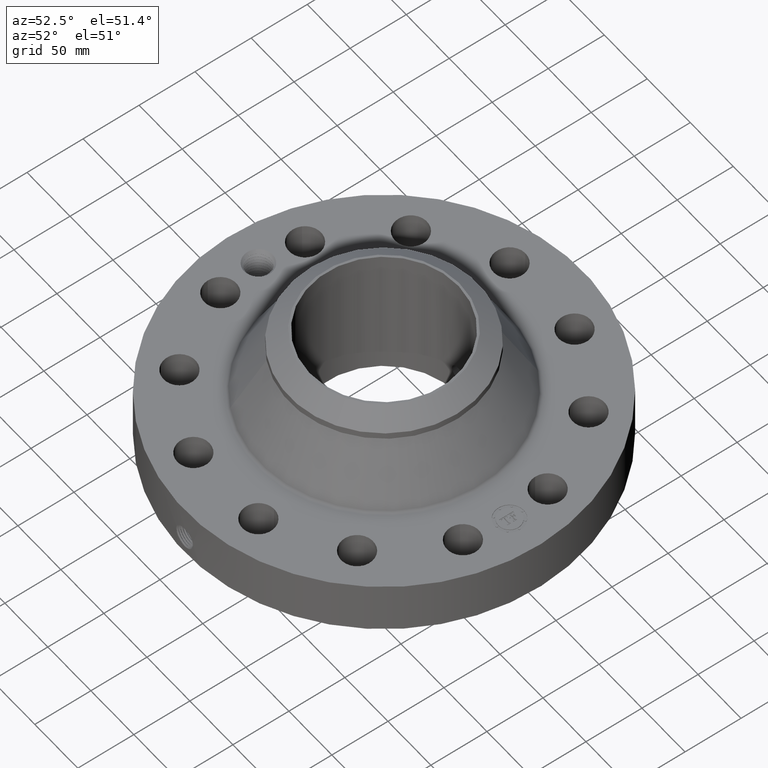
[diagram: clean part render]
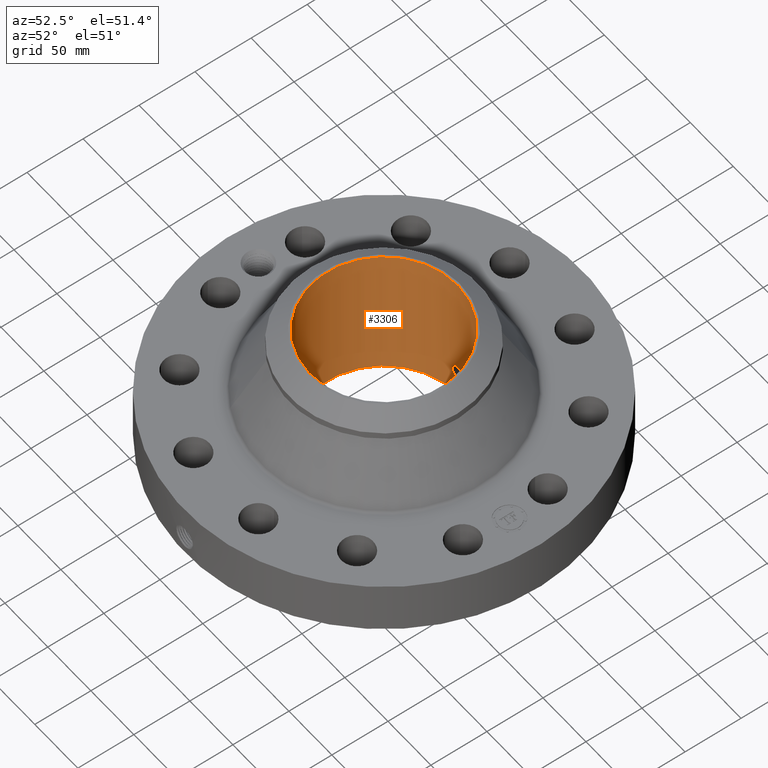
[diagram: same view with one face highlighted and labeled with its STEP entity id]
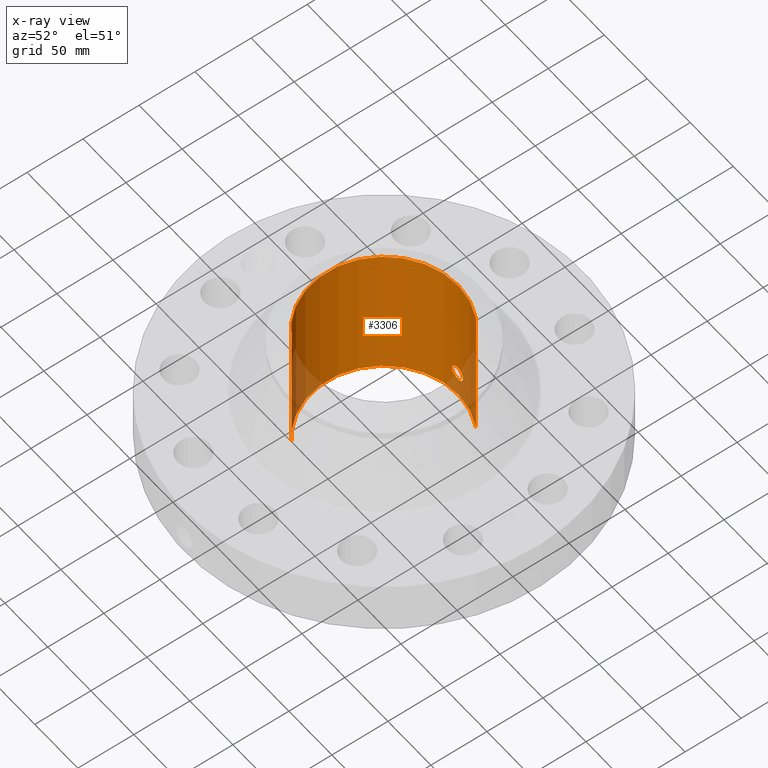
[diagram: x-ray of the same camera — body ghosted, the highlighted face saturated]
A machine part, auxiliary view. The second image highlights one B-rep face of the part: STEP entity #3306.
The next image is the same camera in x-ray: the body ghosted, the highlighted face saturated — about 10% of this face is hidden behind the body in this view.
In plain terms, the highlighted cylindrical surface (partial cylindrical patch) has radius 65.8749 mm, axis along (0, 0, -1).
Its self-contained STEP definition (entity closure, byte-faithful):
#2477=AXIS2_PLACEMENT_3D('Circle Axis2P3D',#2475,#2476,$) ;
#3183=AXIS2_PLACEMENT_3D('Cylinder Axis2P3D',#3180,#3181,#3182) ;
#3255=AXIS2_PLACEMENT_3D('Circle Axis2P3D',#3253,#3254,$) ;
#2470=CARTESIAN_POINT('Vertex',(1.24339013437,2.27601037427,-8.39223703654E-015)) ;
#2472=CARTESIAN_POINT('Vertex',(-1.24339013437,-2.27601037427,-8.39223703654E-015)) ;
#2475=CARTESIAN_POINT('Axis2P3D Location',(0.,0.,0.)) ;
#3180=CARTESIAN_POINT('Axis2P3D Location',(0.,0.,2.43500000001)) ;
#3189=CARTESIAN_POINT('Vertex',(1.24339013437,2.27601037427,4.87000000002)) ;
#3191=CARTESIAN_POINT('Vertex',(-1.24339013437,-2.27601037427,4.87000000002)) ;
#3194=CARTESIAN_POINT('Line Origine',(1.24339013437,2.27601037427,2.43500000001)) ;
#3199=CARTESIAN_POINT('Line Origine',(-1.24339013437,-2.27601037427,2.43500000001)) ;
#3253=CARTESIAN_POINT('Axis2P3D Location',(0.,0.,4.87000000002)) ;
#3265=CARTESIAN_POINT('Control Point',(0.219395640473,2.58420351424,1.05985638466)) ;
#3266=CARTESIAN_POINT('Control Point',(0.206922560509,2.5852624631,1.08268820438)) ;
#3267=CARTESIAN_POINT('Control Point',(0.191482880143,2.586497476,1.1038911755)) ;
#3268=CARTESIAN_POINT('Control Point',(0.173357250086,2.58781278867,1.12295671229)) ;
#3269=CARTESIAN_POINT('Control Point',(0.112221159456,2.59161273053,1.17238948168)) ;
#3270=CARTESIAN_POINT('Control Point',(0.0351285576674,2.59408147071,1.1959388598)) ;
#3271=CARTESIAN_POINT('Control Point',(-0.0194050762052,2.59426940716,1.19761222822)) ;
#3272=CARTESIAN_POINT('Control Point',(-0.123944694253,2.59156277618,1.17254956365)) ;
#3273=CARTESIAN_POINT('Control Point',(-0.202961756018,2.58594113923,1.09981858567)) ;
#3274=CARTESIAN_POINT('Control Point',(-0.231987583432,2.58316326105,1.05370693052)) ;
#3275=CARTESIAN_POINT('Control Point',(-0.255802596732,2.58086220663,0.97551080239)) ;
#3276=CARTESIAN_POINT('Control Point',(-0.248349478137,2.58158164367,0.896021119516)) ;
#3277=CARTESIAN_POINT('Control Point',(-0.242114108162,2.58219290453,0.869351530351)) ;
#3278=CARTESIAN_POINT('Control Point',(-0.232356455498,2.58310315728,0.843868228119)) ;
#3279=CARTESIAN_POINT('Control Point',(-0.219395640473,2.58420351424,0.820143615352)) ;
#3280=CARTESIAN_POINT('Vertex',(0.219395640473,2.58420351424,1.05985638466)) ;
#3282=CARTESIAN_POINT('Vertex',(-0.219395640473,2.58420351424,0.820143615352)) ;
#3286=CARTESIAN_POINT('Control Point',(-0.219395640473,2.58420351424,0.820143615352)) ;
#3287=CARTESIAN_POINT('Control Point',(-0.206922560509,2.5852624631,0.797311795626)) ;
#3288=CARTESIAN_POINT('Control Point',(-0.191482880143,2.586497476,0.776108824508)) ;
#3289=CARTESIAN_POINT('Control Point',(-0.173357250085,2.58781278867,0.757043287712)) ;
#3290=CARTESIAN_POINT('Control Point',(-0.11222115946,2.59161273053,0.707610518334)) ;
#3291=CARTESIAN_POINT('Control Point',(-0.0351285576788,2.59408147071,0.684061140212)) ;
#3292=CARTESIAN_POINT('Control Point',(0.0194050762172,2.59426940716,0.682387771792)) ;
#3293=CARTESIAN_POINT('Control Point',(0.123944694241,2.59156277618,0.707450436359)) ;
#3294=CARTESIAN_POINT('Control Point',(0.202961755993,2.58594113923,0.780181414317)) ;
#3295=CARTESIAN_POINT('Control Point',(0.231987583442,2.58316326105,0.826293069515)) ;
#3296=CARTESIAN_POINT('Control Point',(0.255802596727,2.58086220663,0.904489197623)) ;
#3297=CARTESIAN_POINT('Control Point',(0.248349478139,2.58158164367,0.983978880469)) ;
#3298=CARTESIAN_POINT('Control Point',(0.242114108154,2.58219290454,1.01064846968)) ;
#3299=CARTESIAN_POINT('Control Point',(0.232356455493,2.58310315728,1.0361317719)) ;
#3300=CARTESIAN_POINT('Control Point',(0.219395640473,2.58420351424,1.05985638466)) ;
#2476=DIRECTION('Axis2P3D Direction',(0.,0.,-0.0393700787402)) ;
#3181=DIRECTION('Axis2P3D Direction',(0.,0.,-0.0393700787402)) ;
#3182=DIRECTION('Axis2P3D XDirection',(-0.0188750212049,-0.0345504945626,0.)) ;
#3195=DIRECTION('Vector Direction',(0.,0.,-0.0393700787402)) ;
#3200=DIRECTION('Vector Direction',(0.,0.,-0.0393700787402)) ;
#3254=DIRECTION('Axis2P3D Direction',(0.,0.,-0.0393700787402)) ;
#3196=VECTOR('Line Direction',#3195,0.0393700787402) ;
#3201=VECTOR('Line Direction',#3200,0.0393700787402) ;
#3259=ORIENTED_EDGE('',*,*,#3257,.F.) ;
#3260=ORIENTED_EDGE('',*,*,#3203,.T.) ;
#3261=ORIENTED_EDGE('',*,*,#2479,.T.) ;
#3262=ORIENTED_EDGE('',*,*,#3198,.F.) ;
#3303=ORIENTED_EDGE('',*,*,#3284,.F.) ;
#3304=ORIENTED_EDGE('',*,*,#3301,.F.) ;
#3305=FACE_BOUND('',#3302,.T.) ;
#3306=ADVANCED_FACE('PartBody',(#3263,#3305),#3184,.F.) ;
#3264=B_SPLINE_CURVE_WITH_KNOTS('',5,(#3265,#3266,#3267,#3268,#3269,#3270,#3271,#3272,#3273,#3274,#3275,#3276,#3277,#3278,#3279),.UNSPECIFIED.,.F.,.U.,(6,3,3,3,6),(0.,4.67660523595,14.0190596722,23.3689195551,28.2283941662),.UNSPECIFIED.) ;
#3285=B_SPLINE_CURVE_WITH_KNOTS('',5,(#3286,#3287,#3288,#3289,#3290,#3291,#3292,#3293,#3294,#3295,#3296,#3297,#3298,#3299,#3300),.UNSPECIFIED.,.F.,.U.,(6,3,3,3,6),(0.,4.67660523588,14.0190596711,23.3689195511,28.2283941601),.UNSPECIFIED.) ;
#2478=CIRCLE('generated circle',#2477,2.59350000001) ;
#3256=CIRCLE('generated circle',#3255,2.59350000001) ;
#3184=CYLINDRICAL_SURFACE('generated cylinder',#3183,2.59350000001) ;
#2479=EDGE_CURVE('',#2473,#2471,#2478,.T.) ;
#3198=EDGE_CURVE('',#3190,#2471,#3197,.T.) ;
#3203=EDGE_CURVE('',#3192,#2473,#3202,.T.) ;
#3257=EDGE_CURVE('',#3192,#3190,#3256,.T.) ;
#3284=EDGE_CURVE('',#3281,#3283,#3264,.T.) ;
#3301=EDGE_CURVE('',#3283,#3281,#3285,.T.) ;
#3258=EDGE_LOOP('',(#3259,#3260,#3261,#3262)) ;
#3302=EDGE_LOOP('',(#3303,#3304)) ;
#3263=FACE_OUTER_BOUND('',#3258,.T.) ;
#3197=LINE('Line',#3194,#3196) ;
#3202=LINE('Line',#3199,#3201) ;
#2471=VERTEX_POINT('',#2470) ;
#2473=VERTEX_POINT('',#2472) ;
#3190=VERTEX_POINT('',#3189) ;
#3192=VERTEX_POINT('',#3191) ;
#3281=VERTEX_POINT('',#3280) ;
#3283=VERTEX_POINT('',#3282) ;